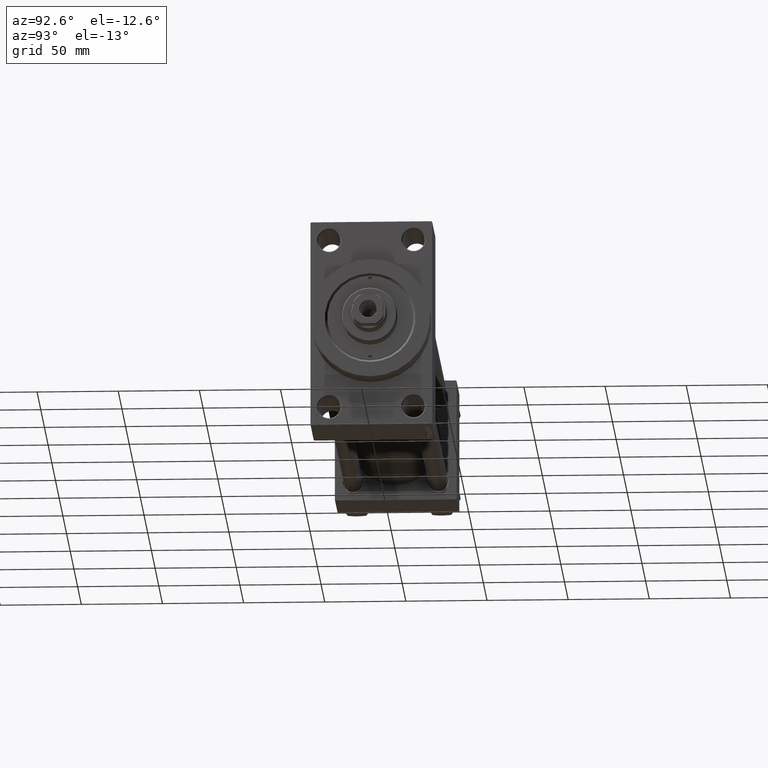
[diagram: clean part render]
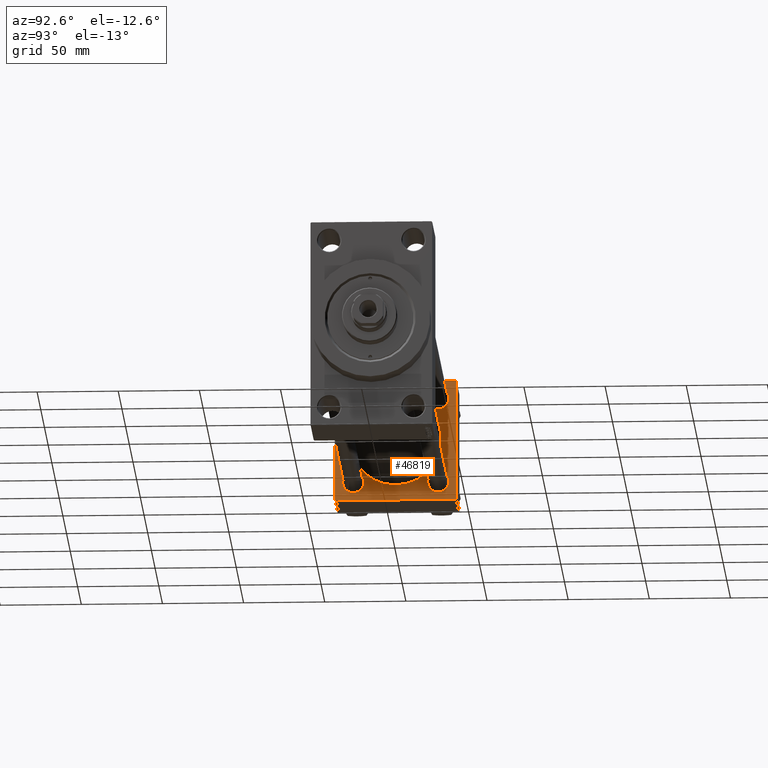
[diagram: same view with one face highlighted and labeled with its STEP entity id]
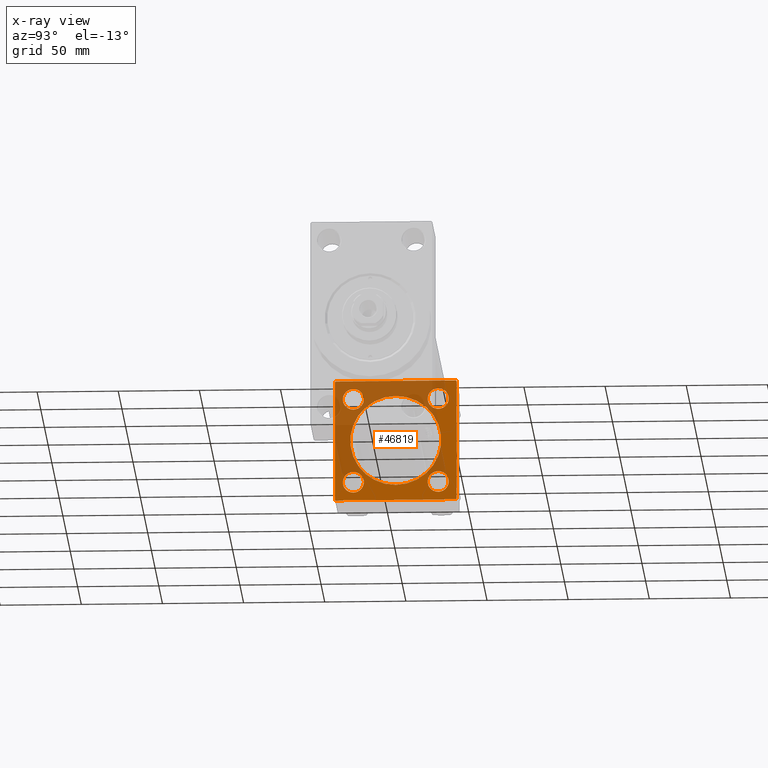
[diagram: x-ray of the same camera — body ghosted, the highlighted face saturated]
A machine part, auxiliary view. The second image highlights one B-rep face of the part: STEP entity #46819.
The next image is the same camera in x-ray: the body ghosted, the highlighted face saturated — about 48% of this face is hidden behind the body in this view.
In plain terms, the highlighted planar face has unit normal (-1, 0, 0).
Its self-contained STEP definition (entity closure, byte-faithful):
#61 = CARTESIAN_POINT ( 'NONE',  ( 37.00000000000000000, 37.49999999999999289, -36.99999999999998579 ) ) ;
#296 = CARTESIAN_POINT ( 'NONE',  ( 37.00000000000000000, -26.14999999999999147, -26.15000000000000924 ) ) ;
#928 = FACE_BOUND ( 'NONE', #23955, .T. ) ;
#1428 = DIRECTION ( 'NONE',  ( -0.000000000000000000, 0.7071067811865474617, 0.7071067811865474617 ) ) ;
#1610 = AXIS2_PLACEMENT_3D ( 'NONE', #25272, #7058, #9768 ) ;
#1756 = VERTEX_POINT ( 'NONE', #28052 ) ;
#2149 = CARTESIAN_POINT ( 'NONE',  ( 37.00000000000000000, 37.49999999999999289, 37.50000000000000000 ) ) ;
#2202 = LINE ( 'NONE', #42475, #7823 ) ;
#2789 = CARTESIAN_POINT ( 'NONE',  ( 37.00000000000000000, 36.99999999999997868, -37.50000000000000000 ) ) ;
#2982 = DIRECTION ( 'NONE',  ( 0.000000000000000000, 9.251858538542971581E-17, -1.000000000000000000 ) ) ;
#3262 = VERTEX_POINT ( 'NONE', #13182 ) ;
#3377 = CARTESIAN_POINT ( 'NONE',  ( 37.00000000000000000, 37.49999999999999289, -37.50000000000000000 ) ) ;
#3466 = ORIENTED_EDGE ( 'NONE', *, *, #38906, .F. ) ;
#3546 = VERTEX_POINT ( 'NONE', #5011 ) ;
#3577 = CARTESIAN_POINT ( 'NONE',  ( 37.00000000000000000, -26.14999999999999147, -32.64999999999995595 ) ) ;
#3680 = CARTESIAN_POINT ( 'NONE',  ( 37.00000000000000000, -26.14999999999999147, -19.65000000000006253 ) ) ;
#3684 = DIRECTION ( 'NONE',  ( 0.000000000000000000, 0.000000000000000000, 1.000000000000000000 ) ) ;
#3709 = LINE ( 'NONE', #28880, #35864 ) ;
#3797 = CARTESIAN_POINT ( 'NONE',  ( 37.00000000000000000, 26.14999999999999858, -26.15000000000000213 ) ) ;
#4286 = FACE_BOUND ( 'NONE', #40359, .T. ) ;
#4557 = CARTESIAN_POINT ( 'NONE',  ( 37.00000000000000000, 37.49999999999999289, -36.99999999999998579 ) ) ;
#4570 = DIRECTION ( 'NONE',  ( 0.000000000000000000, 0.000000000000000000, 1.000000000000000000 ) ) ;
#4802 = AXIS2_PLACEMENT_3D ( 'NONE', #37363, #23210, #34236 ) ;
#4896 = CARTESIAN_POINT ( 'NONE',  ( 37.00000000000000000, 26.14999999999999858, 19.64999999999999858 ) ) ;
#5011 = CARTESIAN_POINT ( 'NONE',  ( 37.00000000000000000, -37.50000000000000711, 36.99999999999999289 ) ) ;
#5508 = DIRECTION ( 'NONE',  ( 0.000000000000000000, -1.000000000000000000, -9.251858538542971581E-17 ) ) ;
#5524 = ORIENTED_EDGE ( 'NONE', *, *, #36664, .F. ) ;
#6213 = ORIENTED_EDGE ( 'NONE', *, *, #38535, .F. ) ;
#6238 = AXIS2_PLACEMENT_3D ( 'NONE', #39360, #45601, #12963 ) ;
#7058 = DIRECTION ( 'NONE',  ( -1.000000000000000000, 0.000000000000000000, -0.000000000000000000 ) ) ;
#7731 = DIRECTION ( 'NONE',  ( 0.000000000000000000, 0.000000000000000000, 1.000000000000000000 ) ) ;
#7823 = VECTOR ( 'NONE', #9625, 1000.000000000000114 ) ;
#7895 = DIRECTION ( 'NONE',  ( 1.000000000000000000, -0.000000000000000000, 0.000000000000000000 ) ) ;
#8924 = ORIENTED_EDGE ( 'NONE', *, *, #44609, .T. ) ;
#9596 = VERTEX_POINT ( 'NONE', #39631 ) ;
#9625 = DIRECTION ( 'NONE',  ( -0.000000000000000000, -0.7071067811865474617, -0.7071067811865474617 ) ) ;
#9768 = DIRECTION ( 'NONE',  ( 0.000000000000000000, 0.000000000000000000, 1.000000000000000000 ) ) ;
#10788 = LINE ( 'NONE', #3377, #24605 ) ;
#10801 = EDGE_LOOP ( 'NONE', ( #15840, #47455 ) ) ;
#10917 = CARTESIAN_POINT ( 'NONE',  ( 37.00000000000000000, 26.14999999999999858, 26.15000000000000213 ) ) ;
#11025 = DIRECTION ( 'NONE',  ( 0.000000000000000000, -1.000000000000000000, -9.251858538542972814E-17 ) ) ;
#11302 = DIRECTION ( 'NONE',  ( -1.000000000000000000, 0.000000000000000000, -0.000000000000000000 ) ) ;
#11518 = ORIENTED_EDGE ( 'NONE', *, *, #42966, .T. ) ;
#12482 = VERTEX_POINT ( 'NONE', #30972 ) ;
#12581 = EDGE_CURVE ( 'NONE', #44427, #3546, #2202, .T. ) ;
#12947 = VECTOR ( 'NONE', #30915, 1000.000000000000000 ) ;
#12963 = DIRECTION ( 'NONE',  ( 0.000000000000000000, 0.000000000000000000, 1.000000000000000000 ) ) ;
#13182 = CARTESIAN_POINT ( 'NONE',  ( 37.00000000000000000, -37.50000000000000000, -37.00000000000003553 ) ) ;
#13911 = LINE ( 'NONE', #4557, #31783 ) ;
#13935 = VERTEX_POINT ( 'NONE', #44605 ) ;
#14026 = DIRECTION ( 'NONE',  ( 0.000000000000000000, -0.7071067811865474617, 0.7071067811865474617 ) ) ;
#14317 = CIRCLE ( 'NONE', #25050, 6.500000000000002665 ) ;
#14327 = DIRECTION ( 'NONE',  ( 0.000000000000000000, 0.000000000000000000, 1.000000000000000000 ) ) ;
#15036 = DIRECTION ( 'NONE',  ( -1.000000000000000000, 0.000000000000000000, -0.000000000000000000 ) ) ;
#15161 = DIRECTION ( 'NONE',  ( 1.000000000000000000, -0.000000000000000000, 0.000000000000000000 ) ) ;
#15294 = DIRECTION ( 'NONE',  ( 0.000000000000000000, 0.000000000000000000, 1.000000000000000000 ) ) ;
#15506 = CARTESIAN_POINT ( 'NONE',  ( 37.00000000000000000, 36.99999999999999289, 37.50000000000000000 ) ) ;
#15645 = CARTESIAN_POINT ( 'NONE',  ( 36.99999999999997868, -2.602085213965210642E-15, 0.000000000000000000 ) ) ;
#15673 = EDGE_CURVE ( 'NONE', #9596, #20250, #46232, .T. ) ;
#15678 = ORIENTED_EDGE ( 'NONE', *, *, #23303, .T. ) ;
#15762 = FACE_OUTER_BOUND ( 'NONE', #39418, .T. ) ;
#15840 = ORIENTED_EDGE ( 'NONE', *, *, #23216, .T. ) ;
#16531 = ORIENTED_EDGE ( 'NONE', *, *, #27003, .T. ) ;
#17204 = CARTESIAN_POINT ( 'NONE',  ( 37.00000000000000000, -37.00000000000002132, -37.50000000000000711 ) ) ;
#17215 = CARTESIAN_POINT ( 'NONE',  ( 37.00000000000000000, -37.00000000000002132, -37.50000000000000711 ) ) ;
#17278 = VERTEX_POINT ( 'NONE', #45000 ) ;
#17353 = ORIENTED_EDGE ( 'NONE', *, *, #36458, .T. ) ;
#18236 = AXIS2_PLACEMENT_3D ( 'NONE', #37653, #34056, #4570 ) ;
#18324 = DIRECTION ( 'NONE',  ( 0.000000000000000000, 0.000000000000000000, 1.000000000000000000 ) ) ;
#18511 = VERTEX_POINT ( 'NONE', #61 ) ;
#18894 = VERTEX_POINT ( 'NONE', #30913 ) ;
#19354 = CARTESIAN_POINT ( 'NONE',  ( 37.00000000000000000, 37.49999999999999289, 37.50000000000000000 ) ) ;
#19876 = LINE ( 'NONE', #2149, #44209 ) ;
#19934 = VERTEX_POINT ( 'NONE', #46330 ) ;
#20250 = VERTEX_POINT ( 'NONE', #25149 ) ;
#21039 = ORIENTED_EDGE ( 'NONE', *, *, #15673, .F. ) ;
#21074 = VERTEX_POINT ( 'NONE', #3577 ) ;
#21652 = CARTESIAN_POINT ( 'NONE',  ( 37.00000000000000000, -37.50000000000000711, 37.49999999999999289 ) ) ;
#21762 = CARTESIAN_POINT ( 'NONE',  ( 37.00000000000000000, -26.14999999999999147, 26.15000000000000924 ) ) ;
#22731 = FACE_BOUND ( 'NONE', #45612, .T. ) ;
#23079 = ORIENTED_EDGE ( 'NONE', *, *, #25146, .T. ) ;
#23092 = EDGE_CURVE ( 'NONE', #25309, #44427, #19876, .T. ) ;
#23210 = DIRECTION ( 'NONE',  ( -1.000000000000000000, 0.000000000000000000, -0.000000000000000000 ) ) ;
#23216 = EDGE_CURVE ( 'NONE', #41423, #19934, #45733, .T. ) ;
#23303 = EDGE_CURVE ( 'NONE', #18894, #1756, #14317, .T. ) ;
#23908 = VECTOR ( 'NONE', #41886, 1000.000000000000000 ) ;
#23947 = LINE ( 'NONE', #17215, #12947 ) ;
#23955 = EDGE_LOOP ( 'NONE', ( #11518, #29625 ) ) ;
#24605 = VECTOR ( 'NONE', #11025, 1000.000000000000000 ) ;
#24608 = DIRECTION ( 'NONE',  ( -1.000000000000000000, 0.000000000000000000, -0.000000000000000000 ) ) ;
#25050 = AXIS2_PLACEMENT_3D ( 'NONE', #3797, #15036, #14327 ) ;
#25085 = AXIS2_PLACEMENT_3D ( 'NONE', #21762, #36385, #46957 ) ;
#25146 = EDGE_CURVE ( 'NONE', #12482, #13935, #33513, .T. ) ;
#25149 = CARTESIAN_POINT ( 'NONE',  ( 36.99999999999997868, -2.602085213965210642E-15, 28.00000000000000000 ) ) ;
#25272 = CARTESIAN_POINT ( 'NONE',  ( 37.00000000000000000, -26.14999999999999147, -26.15000000000000924 ) ) ;
#25309 = VERTEX_POINT ( 'NONE', #15506 ) ;
#25532 = AXIS2_PLACEMENT_3D ( 'NONE', #39387, #7895, #15294 ) ;
#26124 = CIRCLE ( 'NONE', #6238, 6.500000000000002665 ) ;
#26231 = CIRCLE ( 'NONE', #32374, 6.499999999999946709 ) ;
#27003 = EDGE_CURVE ( 'NONE', #13935, #12482, #34360, .T. ) ;
#28052 = CARTESIAN_POINT ( 'NONE',  ( 37.00000000000000000, 26.14999999999999858, -19.65000000000000213 ) ) ;
#28331 = VECTOR ( 'NONE', #2982, 1000.000000000000000 ) ;
#28842 = LINE ( 'NONE', #21652, #28331 ) ;
#28880 = CARTESIAN_POINT ( 'NONE',  ( 37.00000000000000000, 36.99999999999999289, 37.50000000000000000 ) ) ;
#29625 = ORIENTED_EDGE ( 'NONE', *, *, #34900, .T. ) ;
#30474 = EDGE_CURVE ( 'NONE', #17278, #25309, #3709, .T. ) ;
#30913 = CARTESIAN_POINT ( 'NONE',  ( 37.00000000000000000, 26.14999999999999858, -32.65000000000000568 ) ) ;
#30915 = DIRECTION ( 'NONE',  ( 0.000000000000000000, 0.7071067811865524577, -0.7071067811865426878 ) ) ;
#30972 = CARTESIAN_POINT ( 'NONE',  ( 37.00000000000000000, -26.14999999999999147, 19.65000000000005542 ) ) ;
#31783 = VECTOR ( 'NONE', #1428, 1000.000000000000114 ) ;
#32181 = ORIENTED_EDGE ( 'NONE', *, *, #23092, .T. ) ;
#32374 = AXIS2_PLACEMENT_3D ( 'NONE', #296, #11302, #7731 ) ;
#32423 = EDGE_CURVE ( 'NONE', #3262, #42695, #23947, .T. ) ;
#32948 = EDGE_CURVE ( 'NONE', #3546, #3262, #28842, .T. ) ;
#33513 = CIRCLE ( 'NONE', #25085, 6.499999999999953815 ) ;
#33625 = CARTESIAN_POINT ( 'NONE',  ( 37.00000000000000000, -37.00000000000000711, 37.49999999999999289 ) ) ;
#33880 = VERTEX_POINT ( 'NONE', #3680 ) ;
#34056 = DIRECTION ( 'NONE',  ( -1.000000000000000000, 0.000000000000000000, -0.000000000000000000 ) ) ;
#34236 = DIRECTION ( 'NONE',  ( -0.000000000000000000, 0.000000000000000000, 1.000000000000000000 ) ) ;
#34293 = ORIENTED_EDGE ( 'NONE', *, *, #32423, .T. ) ;
#34360 = CIRCLE ( 'NONE', #18236, 6.499999999999953815 ) ;
#34900 = EDGE_CURVE ( 'NONE', #33880, #21074, #37545, .T. ) ;
#35658 = EDGE_CURVE ( 'NONE', #19934, #41423, #42953, .T. ) ;
#35864 = VECTOR ( 'NONE', #14026, 1000.000000000000114 ) ;
#35936 = CARTESIAN_POINT ( 'NONE',  ( 37.00000000000000000, 26.14999999999999858, 26.15000000000000213 ) ) ;
#36385 = DIRECTION ( 'NONE',  ( -1.000000000000000000, 0.000000000000000000, -0.000000000000000000 ) ) ;
#36425 = ORIENTED_EDGE ( 'NONE', *, *, #12581, .T. ) ;
#36458 = EDGE_CURVE ( 'NONE', #1756, #18894, #26124, .T. ) ;
#36664 = EDGE_CURVE ( 'NONE', #41815, #42695, #10788, .T. ) ;
#37124 = FACE_BOUND ( 'NONE', #39985, .T. ) ;
#37363 = CARTESIAN_POINT ( 'NONE',  ( 37.00000000000000000, 0.000000000000000000, 0.000000000000000000 ) ) ;
#37545 = CIRCLE ( 'NONE', #1610, 6.499999999999946709 ) ;
#37653 = CARTESIAN_POINT ( 'NONE',  ( 37.00000000000000000, -26.14999999999999147, 26.15000000000000924 ) ) ;
#38094 = AXIS2_PLACEMENT_3D ( 'NONE', #35936, #43369, #38825 ) ;
#38535 = EDGE_CURVE ( 'NONE', #20250, #9596, #46888, .T. ) ;
#38825 = DIRECTION ( 'NONE',  ( 0.000000000000000000, 0.000000000000000000, 1.000000000000000000 ) ) ;
#38906 = EDGE_CURVE ( 'NONE', #17278, #18511, #41429, .T. ) ;
#39360 = CARTESIAN_POINT ( 'NONE',  ( 37.00000000000000000, 26.14999999999999858, -26.15000000000000213 ) ) ;
#39387 = CARTESIAN_POINT ( 'NONE',  ( 36.99999999999997868, -2.602085213965210642E-15, 0.000000000000000000 ) ) ;
#39418 = EDGE_LOOP ( 'NONE', ( #5524, #8924, #3466, #42793, #32181, #36425, #45545, #34293 ) ) ;
#39631 = CARTESIAN_POINT ( 'NONE',  ( 36.99999999999997868, 8.269258236473784371E-16, -28.00000000000000000 ) ) ;
#39985 = EDGE_LOOP ( 'NONE', ( #23079, #16531 ) ) ;
#40359 = EDGE_LOOP ( 'NONE', ( #6213, #21039 ) ) ;
#41204 = PLANE ( 'NONE',  #4802 ) ;
#41423 = VERTEX_POINT ( 'NONE', #4896 ) ;
#41429 = LINE ( 'NONE', #19354, #23908 ) ;
#41815 = VERTEX_POINT ( 'NONE', #2789 ) ;
#41886 = DIRECTION ( 'NONE',  ( 0.000000000000000000, 0.000000000000000000, -1.000000000000000000 ) ) ;
#42475 = CARTESIAN_POINT ( 'NONE',  ( 37.00000000000000000, -37.50000000000000711, 36.99999999999999289 ) ) ;
#42695 = VERTEX_POINT ( 'NONE', #17204 ) ;
#42793 = ORIENTED_EDGE ( 'NONE', *, *, #30474, .T. ) ;
#42953 = CIRCLE ( 'NONE', #44490, 6.500000000000002665 ) ;
#42966 = EDGE_CURVE ( 'NONE', #21074, #33880, #26231, .T. ) ;
#43369 = DIRECTION ( 'NONE',  ( -1.000000000000000000, 0.000000000000000000, -0.000000000000000000 ) ) ;
#44209 = VECTOR ( 'NONE', #5508, 1000.000000000000000 ) ;
#44427 = VERTEX_POINT ( 'NONE', #33625 ) ;
#44490 = AXIS2_PLACEMENT_3D ( 'NONE', #10917, #24608, #18324 ) ;
#44605 = CARTESIAN_POINT ( 'NONE',  ( 37.00000000000000000, -26.14999999999999147, 32.64999999999996305 ) ) ;
#44609 = EDGE_CURVE ( 'NONE', #41815, #18511, #13911, .T. ) ;
#44803 = FACE_BOUND ( 'NONE', #10801, .T. ) ;
#45000 = CARTESIAN_POINT ( 'NONE',  ( 37.00000000000000000, 37.49999999999999289, 37.00000000000000000 ) ) ;
#45354 = AXIS2_PLACEMENT_3D ( 'NONE', #15645, #15161, #3684 ) ;
#45545 = ORIENTED_EDGE ( 'NONE', *, *, #32948, .T. ) ;
#45601 = DIRECTION ( 'NONE',  ( -1.000000000000000000, 0.000000000000000000, -0.000000000000000000 ) ) ;
#45612 = EDGE_LOOP ( 'NONE', ( #15678, #17353 ) ) ;
#45733 = CIRCLE ( 'NONE', #38094, 6.500000000000002665 ) ;
#46232 = CIRCLE ( 'NONE', #25532, 28.00000000000000000 ) ;
#46330 = CARTESIAN_POINT ( 'NONE',  ( 37.00000000000000000, 26.14999999999999858, 32.65000000000001279 ) ) ;
#46819 = ADVANCED_FACE ( 'NONE', ( #928, #22731, #37124, #44803, #4286, #15762 ), #41204, .F. ) ;
#46888 = CIRCLE ( 'NONE', #45354, 28.00000000000000000 ) ;
#46957 = DIRECTION ( 'NONE',  ( 0.000000000000000000, 0.000000000000000000, 1.000000000000000000 ) ) ;
#47455 = ORIENTED_EDGE ( 'NONE', *, *, #35658, .T. ) ;